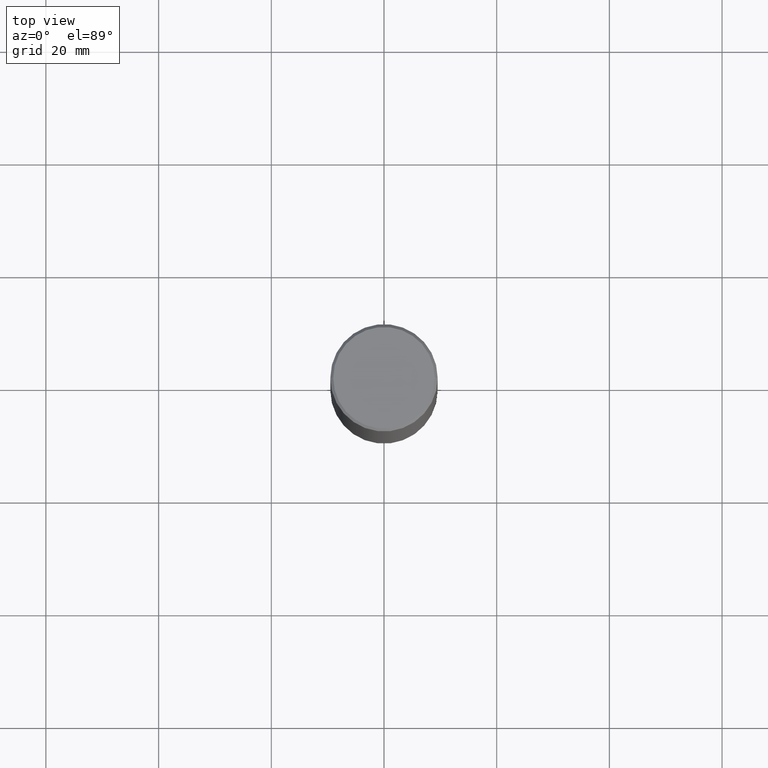
[diagram: clean part render]
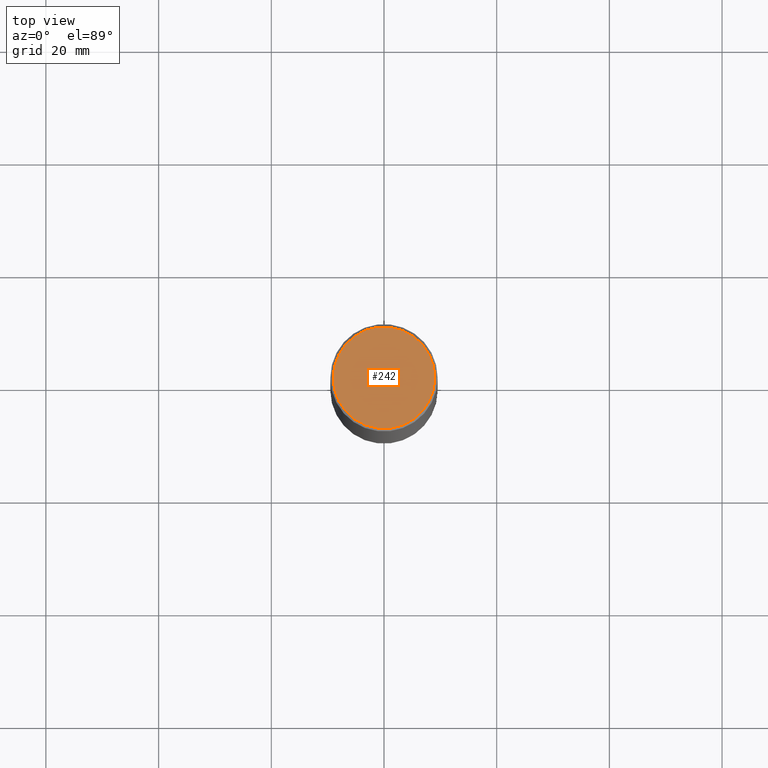
[diagram: same view with one face highlighted and labeled with its STEP entity id]
A machine part, top view. The second image highlights one B-rep face of the part: STEP entity #242.
In plain terms, the highlighted planar face has unit normal (0, -0, -1).
Its self-contained STEP definition (entity closure, byte-faithful):
#2 = CARTESIAN_POINT ( 'NONE',  ( -1.043851414335219820E-46, 1.490343170380447200E-32, 4.268512490100411279E-18 ) ) ;
#4 = AXIS2_PLACEMENT_3D ( 'NONE', #120, #198, #76 ) ;
#12 = DIRECTION ( 'NONE',  ( -2.445468806185136597E-29, 3.491481338843145583E-15, 1.000000000000000000 ) ) ;
#38 = FACE_OUTER_BOUND ( 'NONE', #135, .T. ) ;
#76 = DIRECTION ( 'NONE',  ( -1.000000000000000000, 6.982962677686265922E-15, -4.876176775795935793E-29 ) ) ;
#119 = DIRECTION ( 'NONE',  ( 1.000000000000000000, -6.982962677686266711E-15, 4.876231632512002757E-29 ) ) ;
#120 = CARTESIAN_POINT ( 'NONE',  ( 2.478951750578617109E-15, 0.3549999999999989275, -1.237341619044262680E-15 ) ) ;
#128 = CARTESIAN_POINT ( 'NONE',  ( -1.043851414335219820E-46, 1.490343170380447200E-32, 4.268512490100411279E-18 ) ) ;
#135 = EDGE_LOOP ( 'NONE', ( #225, #316 ) ) ;
#138 = AXIS2_PLACEMENT_3D ( 'NONE', #128, #317, #119 ) ;
#159 = EDGE_CURVE ( 'NONE', #490, #429, #324, .T. ) ;
#198 = DIRECTION ( 'NONE',  ( 2.438088387897960049E-29, -3.491481338843145188E-15, -1.000000000000000000 ) ) ;
#200 = PLANE ( 'NONE',  #4 ) ;
#225 = ORIENTED_EDGE ( 'NONE', *, *, #159, .T. ) ;
#242 = ADVANCED_FACE ( 'NONE', ( #38 ), #200, .F. ) ;
#252 = CARTESIAN_POINT ( 'NONE',  ( -0.3549999999999989275, 2.513866563967048758E-15, 4.268512490082953109E-18 ) ) ;
#267 = CIRCLE ( 'NONE', #297, 0.3549999999999989275 ) ;
#277 = EDGE_CURVE ( 'NONE', #429, #490, #267, .T. ) ;
#297 = AXIS2_PLACEMENT_3D ( 'NONE', #2, #12, #323 ) ;
#316 = ORIENTED_EDGE ( 'NONE', *, *, #277, .T. ) ;
#317 = DIRECTION ( 'NONE',  ( -2.445468806185136597E-29, 3.491481338843145583E-15, 1.000000000000000000 ) ) ;
#323 = DIRECTION ( 'NONE',  ( 1.000000000000000000, -6.982962677686266711E-15, 4.876231632512002757E-29 ) ) ;
#324 = CIRCLE ( 'NONE', #138, 0.3549999999999989275 ) ;
#397 = CARTESIAN_POINT ( 'NONE',  ( 0.3549999999999989275, -2.538996582575033948E-15, 4.268512490117958041E-18 ) ) ;
#429 = VERTEX_POINT ( 'NONE', #397 ) ;
#490 = VERTEX_POINT ( 'NONE', #252 ) ;